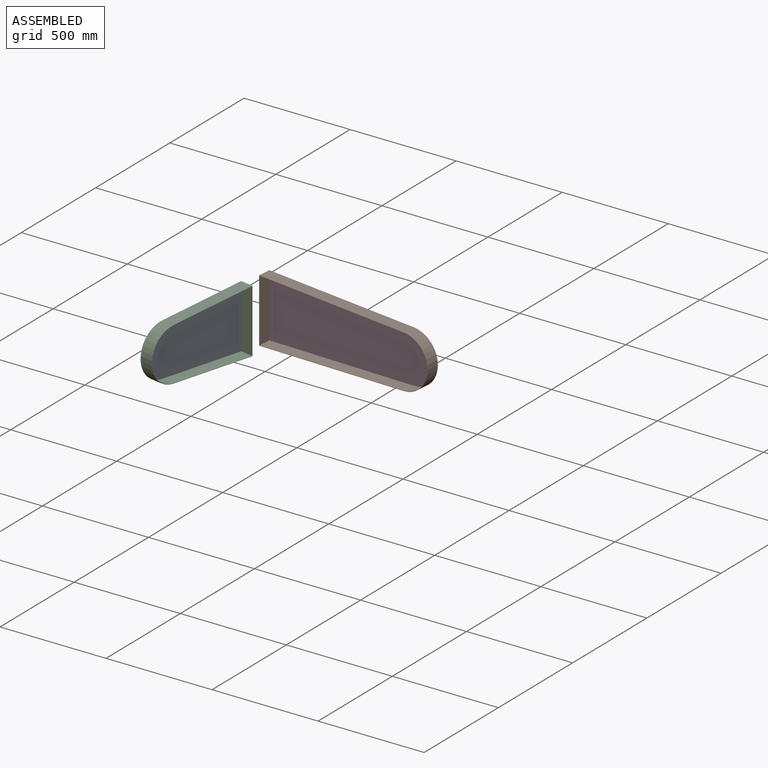
[diagram: assembled view]
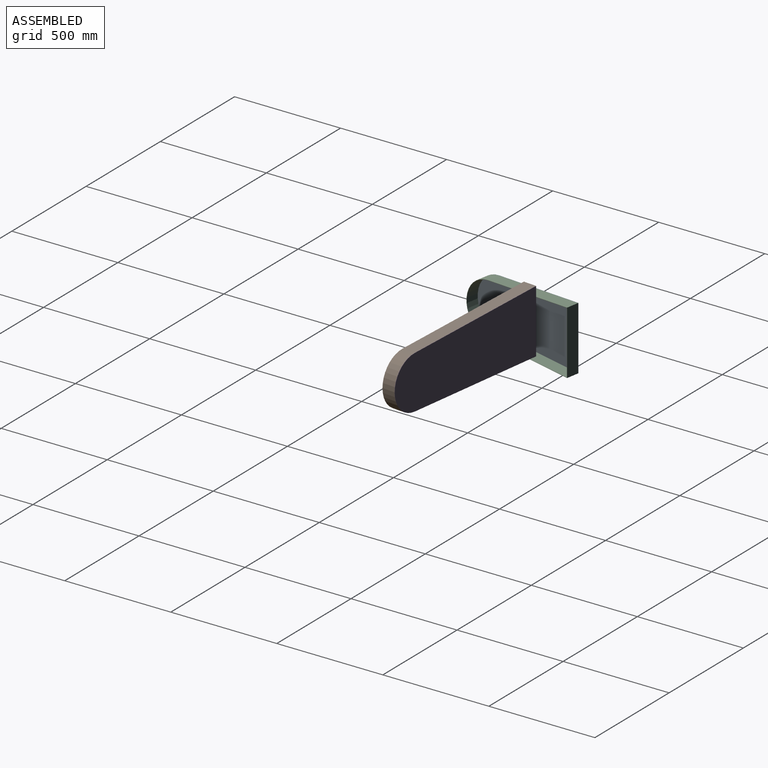
[diagram: assembled view, second angle]
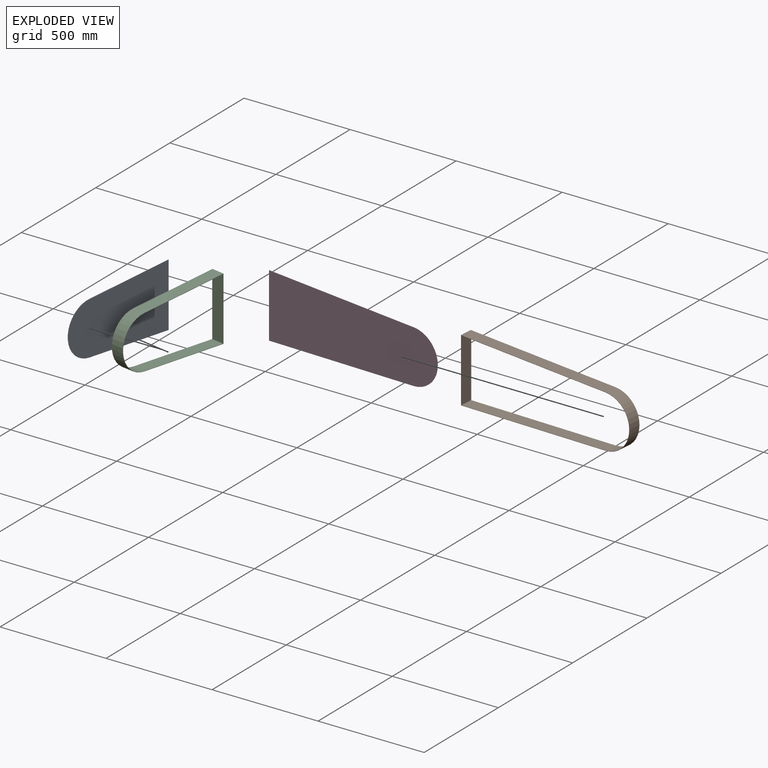
[diagram: exploded view]
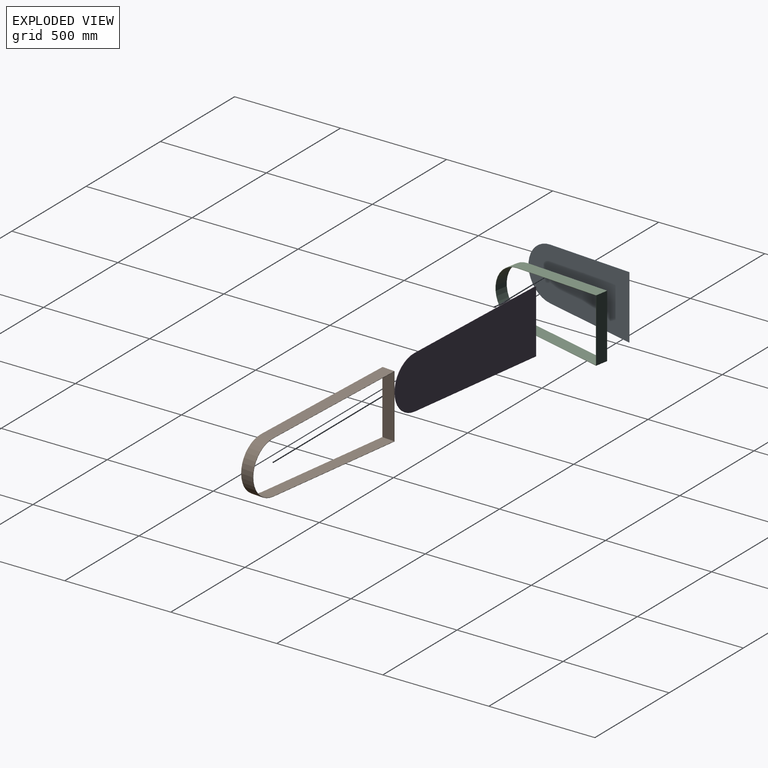
[diagram: exploded view, second angle]
ASSEMBLY  parts=4 mates=2
PART A: 6 faces, bbox 550x1.5x300 mm
  f0: cylinder r=125mm len=249.58mm, axis (0,1,0), area 567.2mm2, adj f1,f3,f4,f5
  f1: plane 432.28x25.21mm, normal (-0.06,0,-1), area 649.5mm2, adj f0,f2,f4,f5
  f2: plane 300x1.5mm, normal (1,0,0), area 450mm2, adj f1,f3,f4,f5
  f3: plane 432.28x25.21mm, normal (-0.06,0,1), area 649.5mm2, adj f0,f2,f4,f5
  f4: plane 550x300mm, normal (0,-1,0), area 141510mm2, adj f0,f1,f2,f3
  f5: plane 550x300mm, normal (0,1,0), area 141510mm2, adj f0,f1,f2,f3
PART B: 10 faces, bbox 850x60x300 mm
  f0: plane 300x60mm, normal (1,0,0), area 18000mm2, adj f1,f7,f8,f9
  f1: plane 729.3x60mm, normal (-0.03,0,1), area 43783.6mm2, adj f0,f2,f8,f9
  f2: cylinder r=125mm len=249.85mm, axis (0,1,0), area 23046.4mm2, adj f1,f7,f8,f9
  f3: plane 296.9x60mm, normal (-1,0,0), area 17813.7mm2, adj f4,f6,f8,f9
  f4: plane 727.74x60mm, normal (0.03,0,1), area 43690.4mm2, adj f3,f5,f8,f9
  f5: cylinder r=123.5mm len=246.85mm, axis (0,1,0), area 22769.9mm2, adj f4,f6,f8,f9
  f6: plane 727.74x60mm, normal (0.03,0,-1), area 43690.4mm2, adj f3,f5,f8,f9
  f7: plane 729.3x60mm, normal (-0.03,0,-1), area 43783.6mm2, adj f0,f2,f8,f9
  f8: plane 850x300mm, normal (0,-1,0), area 3207.2mm2, adj f0,f1,f2,f3,f4,f5,f6,f7
  f9: plane 850x300mm, normal (0,1,0), area 3207.2mm2, adj f0,f1,f2,f3,f4,f5,f6,f7
PART C: 10 faces, bbox 550x60x300 mm
  f0: plane 300x60mm, normal (1,0,0), area 18000mm2, adj f1,f7,f8,f9
  f1: plane 432.28x60mm, normal (-0.06,0,1), area 25980.8mm2, adj f0,f2,f8,f9
  f2: cylinder r=125mm len=249.58mm, axis (0,1,0), area 22688.1mm2, adj f1,f7,f8,f9
  f3: plane 296.82x60mm, normal (-1,0,0), area 17809.2mm2, adj f4,f6,f8,f9
  f4: plane 430.69x60mm, normal (0.06,0,1), area 25885.4mm2, adj f3,f5,f8,f9
  f5: cylinder r=123.5mm len=246.58mm, axis (0,1,0), area 22415.8mm2, adj f4,f6,f8,f9
  f6: plane 430.69x60mm, normal (0.06,0,-1), area 25885.4mm2, adj f3,f5,f8,f9
  f7: plane 432.28x60mm, normal (-0.06,0,-1), area 25980.8mm2, adj f0,f2,f8,f9
  f8: plane 550x300mm, normal (0,-1,0), area 2308.1mm2, adj f0,f1,f2,f3,f4,f5,f6,f7
  f9: plane 550x300mm, normal (0,1,0), area 2308.1mm2, adj f0,f1,f2,f3,f4,f5,f6,f7
PART D: 6 faces, bbox 850x1.5x300 mm
  f0: cylinder r=125mm len=249.85mm, axis (0,1,0), area 576.2mm2, adj f1,f3,f4,f5
  f1: plane 729.3x25.07mm, normal (-0.03,0,-1), area 1094.6mm2, adj f0,f2,f4,f5
  f2: plane 300x1.5mm, normal (1,0,0), area 450mm2, adj f1,f3,f4,f5
  f3: plane 729.3x25.07mm, normal (-0.03,0,1), area 1094.6mm2, adj f0,f2,f4,f5
  f4: plane 850x300mm, normal (0,-1,0), area 223972.4mm2, adj f0,f1,f2,f3
  f5: plane 850x300mm, normal (0,1,0), area 223972.4mm2, adj f0,f1,f2,f3
PLACE A rot(axis=(0,0,1),80deg) t=(-155.57,62.22,-144.38)mm
PLACE B rot(axis=(-0.04,-1,0),180deg) t=(25.89,-10.64,-21.67)mm
PLACE C rot(axis=(0,0,1),80deg) t=(-154.83,62.09,-144.38)mm
PLACE D rot(axis=(-0.04,-1,0),180deg) t=(25.95,-9.89,-21.67)mm
MATE fastened C.f9 <-> A.f4  axis (-0.98,0.17,0) through (-154.83,62.09,5.62)mm
MATE fastened D.f4 <-> B.f9  axis (-0.09,-1,0) through (25.89,-10.64,-171.67)mm
